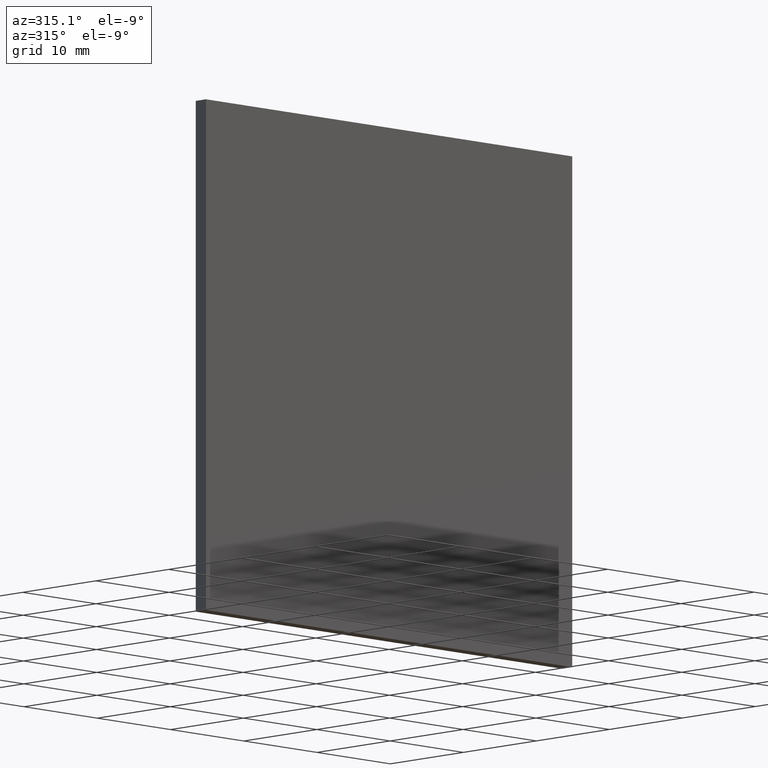
[diagram: clean part render]
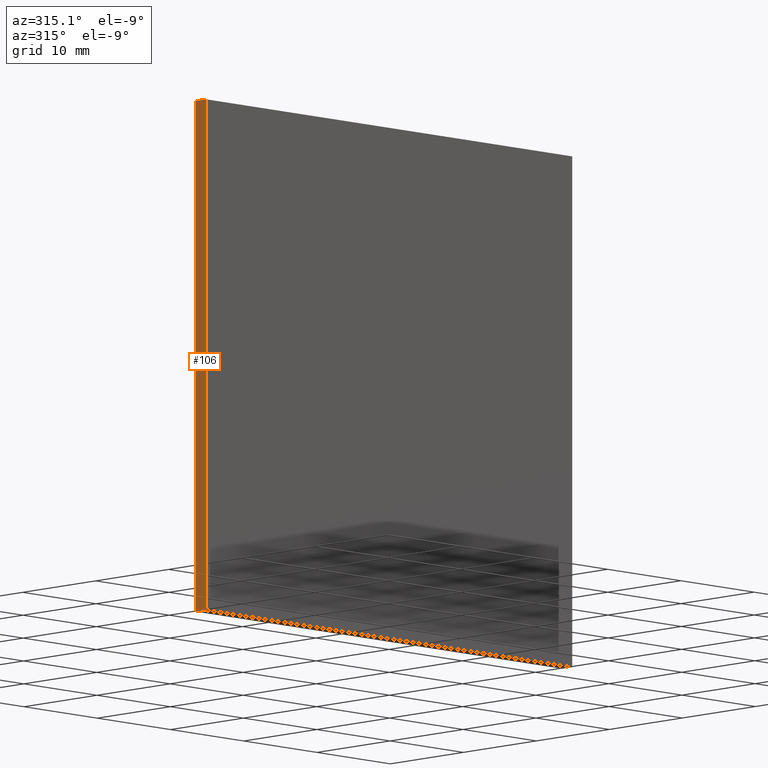
[diagram: same view with one face highlighted and labeled with its STEP entity id]
A machine part, auxiliary view. The second image highlights one B-rep face of the part: STEP entity #106.
In plain terms, the highlighted planar face has unit normal (1, -0, 0).
Its self-contained STEP definition (entity closure, byte-faithful):
#2 = LINE ( 'NONE', #22, #84 ) ;
#9 = LINE ( 'NONE', #187, #42 ) ;
#18 = ORIENTED_EDGE ( 'NONE', *, *, #133, .F. ) ;
#19 = VERTEX_POINT ( 'NONE', #200 ) ;
#22 = CARTESIAN_POINT ( 'NONE',  ( -25.00000000000000400, 1.399999999999999900, 24.99999999999999600 ) ) ;
#31 = PLANE ( 'NONE',  #172 ) ;
#32 = VECTOR ( 'NONE', #186, 1000.000000000000000 ) ;
#39 = DIRECTION ( 'NONE',  ( 1.000000000000000000, -0.0000000000000000000, 0.0000000000000000000 ) ) ;
#42 = VECTOR ( 'NONE', #76, 1000.000000000000000 ) ;
#43 = ORIENTED_EDGE ( 'NONE', *, *, #48, .F. ) ;
#46 = CARTESIAN_POINT ( 'NONE',  ( -25.00000000000000400, 1.399999999999999900, 24.99999999999999600 ) ) ;
#48 = EDGE_CURVE ( 'NONE', #74, #69, #2, .T. ) ;
#58 = DIRECTION ( 'NONE',  ( 0.0000000000000000000, 0.0000000000000000000, -1.000000000000000000 ) ) ;
#66 = EDGE_CURVE ( 'NONE', #19, #158, #9, .T. ) ;
#68 = VECTOR ( 'NONE', #124, 1000.000000000000000 ) ;
#69 = VERTEX_POINT ( 'NONE', #85 ) ;
#70 = CARTESIAN_POINT ( 'NONE',  ( -25.00000000000000400, 1.399999999999999900, 24.99999999999999600 ) ) ;
#74 = VERTEX_POINT ( 'NONE', #70 ) ;
#76 = DIRECTION ( 'NONE',  ( -0.0000000000000000000, -1.000000000000000000, -0.0000000000000000000 ) ) ;
#80 = LINE ( 'NONE', #103, #68 ) ;
#84 = VECTOR ( 'NONE', #146, 1000.000000000000000 ) ;
#85 = CARTESIAN_POINT ( 'NONE',  ( -25.00000000000000400, 0.0000000000000000000, 24.99999999999999600 ) ) ;
#92 = FACE_OUTER_BOUND ( 'NONE', #107, .T. ) ;
#97 = EDGE_CURVE ( 'NONE', #158, #69, #102, .T. ) ;
#102 = LINE ( 'NONE', #150, #32 ) ;
#103 = CARTESIAN_POINT ( 'NONE',  ( -25.00000000000000400, 1.399999999999999900, 24.99999999999999600 ) ) ;
#106 = ADVANCED_FACE ( 'NONE', ( #92 ), #31, .F. ) ;
#107 = EDGE_LOOP ( 'NONE', ( #179, #43, #18, #191 ) ) ;
#124 = DIRECTION ( 'NONE',  ( -0.0000000000000000000, -0.0000000000000000000, 1.000000000000000000 ) ) ;
#133 = EDGE_CURVE ( 'NONE', #19, #74, #80, .T. ) ;
#146 = DIRECTION ( 'NONE',  ( -0.0000000000000000000, -1.000000000000000000, -0.0000000000000000000 ) ) ;
#150 = CARTESIAN_POINT ( 'NONE',  ( -25.00000000000000400, 0.0000000000000000000, 24.99999999999999600 ) ) ;
#158 = VERTEX_POINT ( 'NONE', #180 ) ;
#172 = AXIS2_PLACEMENT_3D ( 'NONE', #46, #39, #58 ) ;
#179 = ORIENTED_EDGE ( 'NONE', *, *, #97, .T. ) ;
#180 = CARTESIAN_POINT ( 'NONE',  ( -25.00000000000000400, 0.0000000000000000000, -25.00000000000000400 ) ) ;
#186 = DIRECTION ( 'NONE',  ( -0.0000000000000000000, -0.0000000000000000000, 1.000000000000000000 ) ) ;
#187 = CARTESIAN_POINT ( 'NONE',  ( -25.00000000000000400, 1.399999999999999900, -25.00000000000000400 ) ) ;
#191 = ORIENTED_EDGE ( 'NONE', *, *, #66, .T. ) ;
#200 = CARTESIAN_POINT ( 'NONE',  ( -25.00000000000000400, 1.399999999999999900, -25.00000000000000400 ) ) ;